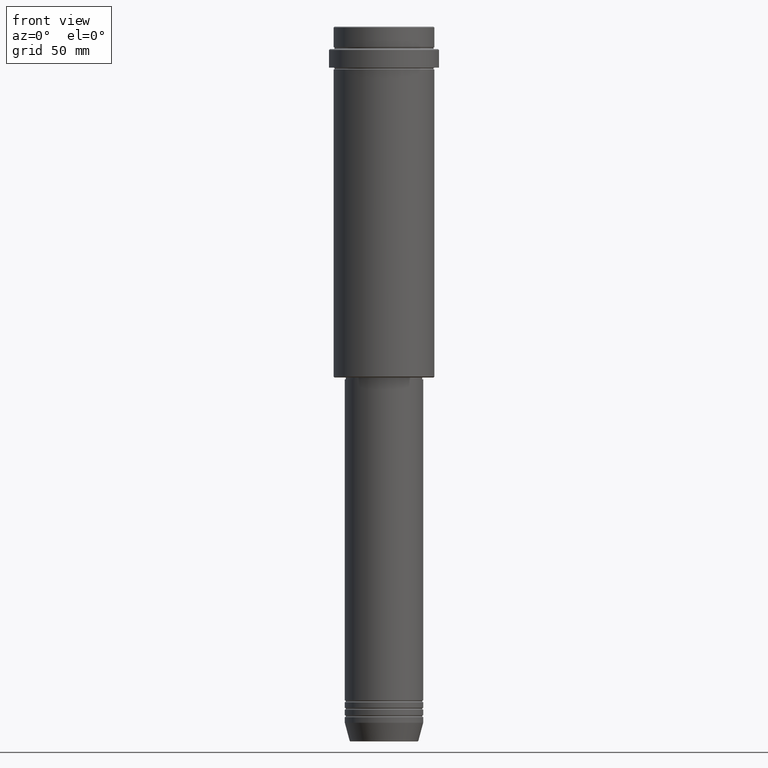
[diagram: clean part render]
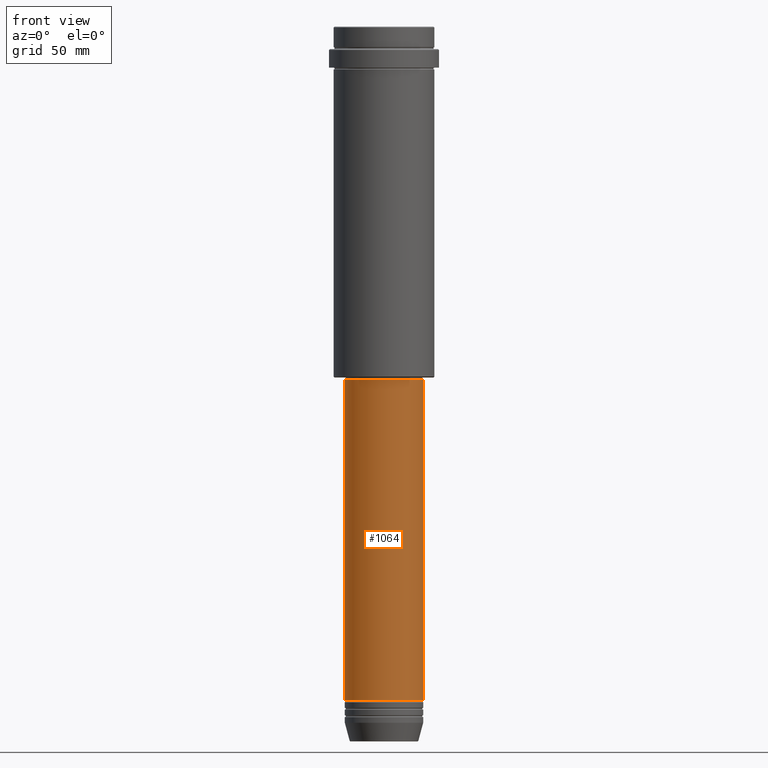
[diagram: same view with one face highlighted and labeled with its STEP entity id]
A machine part, front view. The second image highlights one B-rep face of the part: STEP entity #1064.
In plain terms, the highlighted cylindrical surface (partial cylindrical patch) has radius 21 mm, axis along (-0, -0, 1).
Its self-contained STEP definition (entity closure, byte-faithful):
#4 = VERTEX_POINT ( 'NONE', #1238 ) ;
#16 = CIRCLE ( 'NONE', #692, 21.00000000000000000 ) ;
#92 = CARTESIAN_POINT ( 'NONE',  ( 21.00000000000000000, 0.000000000000000000, -360.9999999999998863 ) ) ;
#100 = DIRECTION ( 'NONE',  ( 1.000000000000000000, 0.000000000000000000, 0.000000000000000000 ) ) ;
#115 = EDGE_CURVE ( 'NONE', #585, #838, #527, .T. ) ;
#162 = CARTESIAN_POINT ( 'NONE',  ( 0.000000000000000000, 0.000000000000000000, -360.9999999999998863 ) ) ;
#171 = CARTESIAN_POINT ( 'NONE',  ( 21.00000000000000000, 0.000000000000000000, 0.000000000000000000 ) ) ;
#194 = DIRECTION ( 'NONE',  ( -0.000000000000000000, -0.000000000000000000, 1.000000000000000000 ) ) ;
#269 = EDGE_LOOP ( 'NONE', ( #630, #1014, #955, #301 ) ) ;
#301 = ORIENTED_EDGE ( 'NONE', *, *, #1395, .F. ) ;
#325 = CARTESIAN_POINT ( 'NONE',  ( 0.000000000000000000, 0.000000000000000000, 0.000000000000000000 ) ) ;
#345 = AXIS2_PLACEMENT_3D ( 'NONE', #325, #194, #100 ) ;
#512 = CARTESIAN_POINT ( 'NONE',  ( -21.00000000000000000, 2.571758278209441661E-15, -360.9999999999998863 ) ) ;
#527 = CIRCLE ( 'NONE', #1039, 21.00000000000000000 ) ;
#585 = VERTEX_POINT ( 'NONE', #512 ) ;
#630 = ORIENTED_EDGE ( 'NONE', *, *, #1351, .F. ) ;
#651 = DIRECTION ( 'NONE',  ( -0.000000000000000000, -0.000000000000000000, 1.000000000000000000 ) ) ;
#681 = CARTESIAN_POINT ( 'NONE',  ( -21.00000000000000000, 2.571758278209441661E-15, 0.000000000000000000 ) ) ;
#692 = AXIS2_PLACEMENT_3D ( 'NONE', #719, #1140, #819 ) ;
#719 = CARTESIAN_POINT ( 'NONE',  ( 0.000000000000000000, 0.000000000000000000, -188.9999999999999147 ) ) ;
#819 = DIRECTION ( 'NONE',  ( 1.000000000000000000, 0.000000000000000000, 0.000000000000000000 ) ) ;
#829 = CARTESIAN_POINT ( 'NONE',  ( 21.00000000000000000, 0.000000000000000000, -188.9999999999999147 ) ) ;
#838 = VERTEX_POINT ( 'NONE', #92 ) ;
#938 = VECTOR ( 'NONE', #651, 1000.000000000000000 ) ;
#955 = ORIENTED_EDGE ( 'NONE', *, *, #1030, .T. ) ;
#961 = CYLINDRICAL_SURFACE ( 'NONE', #345, 21.00000000000000000 ) ;
#978 = VERTEX_POINT ( 'NONE', #829 ) ;
#1014 = ORIENTED_EDGE ( 'NONE', *, *, #115, .T. ) ;
#1030 = EDGE_CURVE ( 'NONE', #838, #978, #1149, .T. ) ;
#1039 = AXIS2_PLACEMENT_3D ( 'NONE', #162, #1055, #1276 ) ;
#1055 = DIRECTION ( 'NONE',  ( -0.000000000000000000, -0.000000000000000000, 1.000000000000000000 ) ) ;
#1064 = ADVANCED_FACE ( 'NONE', ( #1191 ), #961, .T. ) ;
#1113 = VECTOR ( 'NONE', #1114, 1000.000000000000000 ) ;
#1114 = DIRECTION ( 'NONE',  ( -0.000000000000000000, -0.000000000000000000, 1.000000000000000000 ) ) ;
#1122 = LINE ( 'NONE', #681, #1113 ) ;
#1140 = DIRECTION ( 'NONE',  ( -0.000000000000000000, -0.000000000000000000, 1.000000000000000000 ) ) ;
#1149 = LINE ( 'NONE', #171, #938 ) ;
#1191 = FACE_OUTER_BOUND ( 'NONE', #269, .T. ) ;
#1238 = CARTESIAN_POINT ( 'NONE',  ( -21.00000000000000000, 2.571758278209441661E-15, -188.9999999999999147 ) ) ;
#1276 = DIRECTION ( 'NONE',  ( 1.000000000000000000, 0.000000000000000000, 0.000000000000000000 ) ) ;
#1351 = EDGE_CURVE ( 'NONE', #585, #4, #1122, .T. ) ;
#1395 = EDGE_CURVE ( 'NONE', #4, #978, #16, .T. ) ;